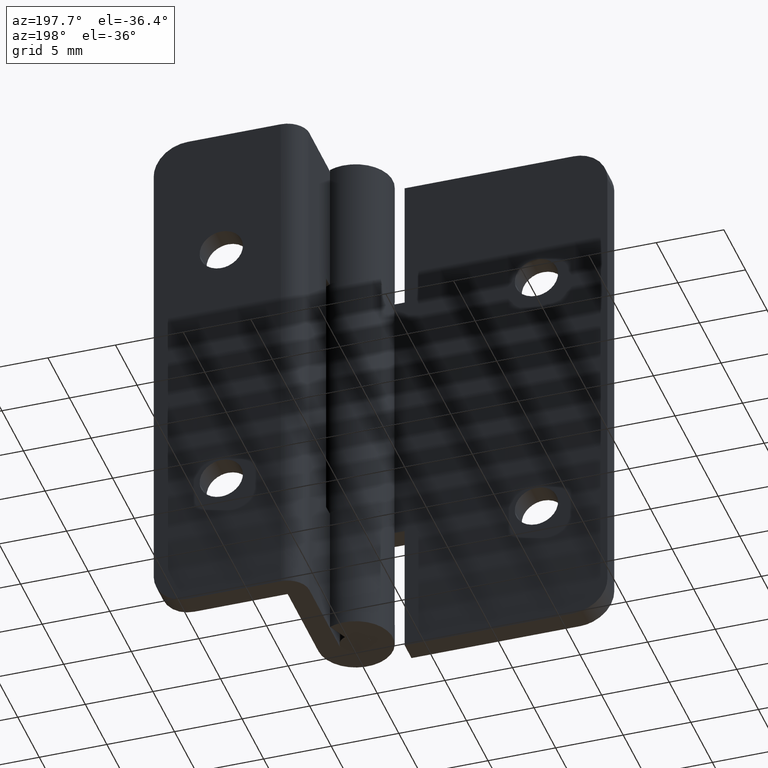
[diagram: clean part render]
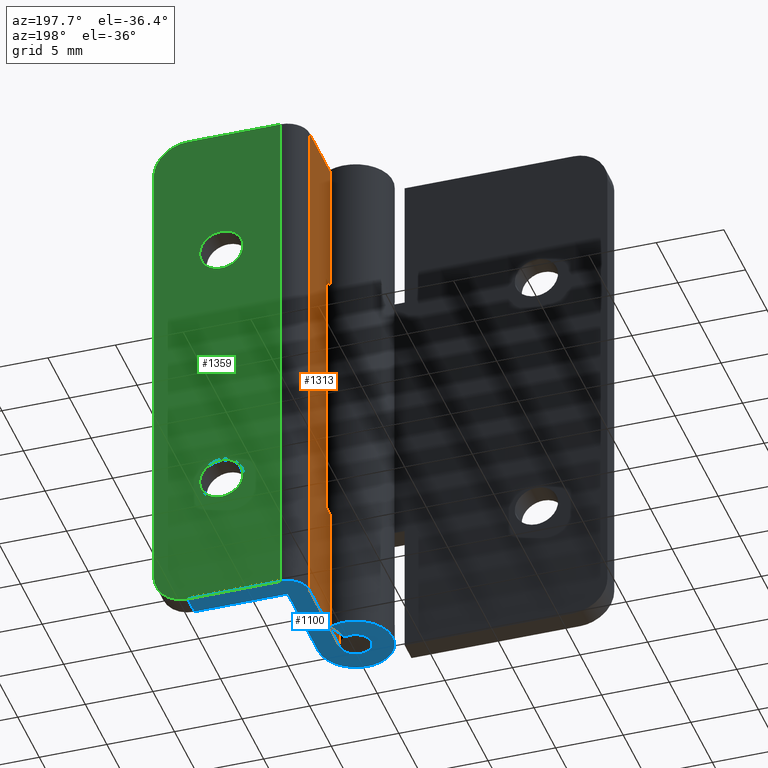
[diagram: same view with three faces highlighted in distinct colors, each labeled with its STEP entity id]
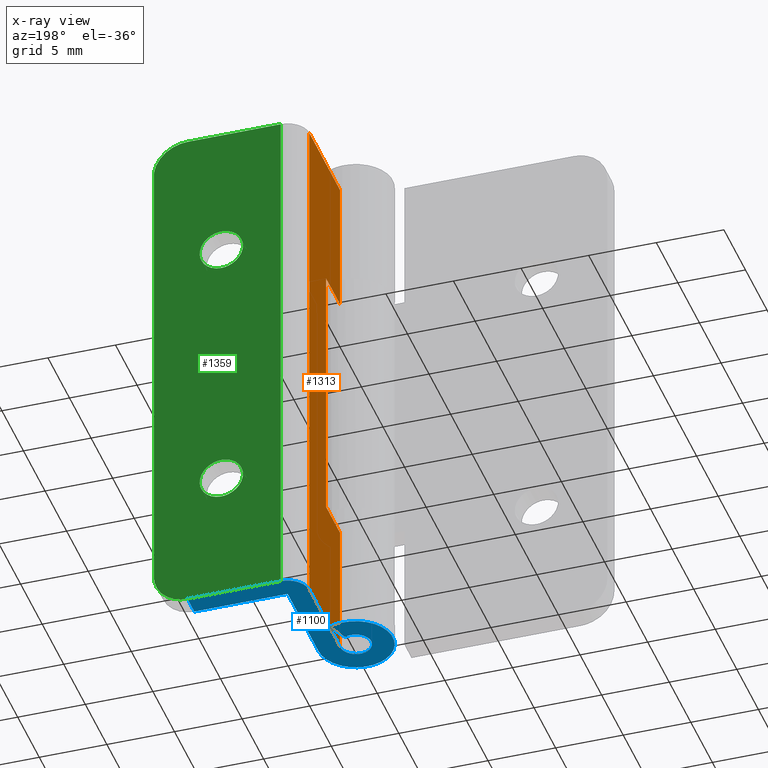
[diagram: x-ray of the same camera — body ghosted, the three highlighted faces saturated]
A machine part, auxiliary view with three faces highlighted in distinct colors.
The next image is the same camera in x-ray (body ghosted, the three faces saturated) — at least one of them is partly hidden behind the body in this view.
Their STEP definitions:

[orange] entity #1313 — the highlighted face is a freeform B-spline surface patch.
#694=CARTESIAN_POINT('',(1.150000999999844,3.249999999999800,10.0));
#695=VERTEX_POINT('',#694);
#701=CARTESIAN_POINT('',(1.150000000000000,0.0,10.0));
#702=VERTEX_POINT('',#701);
#703=CARTESIAN_POINT('',(1.150000000000000,0.0,10.0));
#704=CARTESIAN_POINT('',(1.150000999999844,3.249999999999800,10.0));
#705=QUASI_UNIFORM_CURVE('',1,(#703,#704),.UNSPECIFIED.,.F.,.U.);
#706=EDGE_CURVE('',#702,#695,#705,.T.);
#742=CARTESIAN_POINT('',(1.150000999999844,3.249999999999800,30.0));
#743=VERTEX_POINT('',#742);
#786=CARTESIAN_POINT('',(1.150000000000000,0.0,30.0));
#787=VERTEX_POINT('',#786);
#807=CARTESIAN_POINT('',(1.150000999999844,3.249999999999800,30.0));
#808=CARTESIAN_POINT('',(1.150000000000000,0.0,30.0));
#809=QUASI_UNIFORM_CURVE('',1,(#807,#808),.UNSPECIFIED.,.F.,.U.);
#810=EDGE_CURVE('',#743,#787,#809,.T.);
#827=CARTESIAN_POINT('',(1.150000999999844,3.249999999999800,10.0));
#828=CARTESIAN_POINT('',(1.150000999999844,3.249999999999800,30.0));
#829=QUASI_UNIFORM_CURVE('',1,(#827,#828),.UNSPECIFIED.,.F.,.U.);
#830=EDGE_CURVE('',#695,#743,#829,.T.);
#851=CARTESIAN_POINT('',(1.150000999999890,7.150000000000000,40.0));
#852=VERTEX_POINT('',#851);
#873=CARTESIAN_POINT('',(1.150000999999890,7.150000000000000,0.0));
#874=VERTEX_POINT('',#873);
#888=CARTESIAN_POINT('',(1.150000999999890,7.150000000000000,40.0));
#889=CARTESIAN_POINT('',(1.150000999999890,7.150000000000000,0.0));
#890=QUASI_UNIFORM_CURVE('',1,(#888,#889),.UNSPECIFIED.,.F.,.U.);
#891=EDGE_CURVE('',#852,#874,#890,.T.);
#1023=CARTESIAN_POINT('',(1.150000999999890,0.0,0.0));
#1024=VERTEX_POINT('',#1023);
#1025=CARTESIAN_POINT('',(1.150000999999890,7.150000000000000,0.0));
#1026=CARTESIAN_POINT('',(1.150000999999890,0.0,0.0));
#1027=QUASI_UNIFORM_CURVE('',1,(#1025,#1026),.UNSPECIFIED.,.F.,.U.);
#1028=EDGE_CURVE('',#874,#1024,#1027,.T.);
#1112=CARTESIAN_POINT('',(1.150000999999890,0.0,40.0));
#1113=VERTEX_POINT('',#1112);
#1114=CARTESIAN_POINT('',(1.150000999999890,7.150000000000000,40.0));
#1115=CARTESIAN_POINT('',(1.150000999999890,0.0,40.0));
#1116=QUASI_UNIFORM_CURVE('',1,(#1114,#1115),.UNSPECIFIED.,.F.,.U.);
#1117=EDGE_CURVE('',#852,#1113,#1116,.T.);
#1285=CARTESIAN_POINT('',(1.150000000000000,0.0,10.0));
#1286=CARTESIAN_POINT('',(1.150000999999890,0.0,0.0));
#1287=QUASI_UNIFORM_CURVE('',1,(#1285,#1286),.UNSPECIFIED.,.F.,.U.);
#1288=EDGE_CURVE('',#702,#1024,#1287,.T.);
#1294=CARTESIAN_POINT('',(1.150000999999890,-0.357142486141912,41.997999922472239));
#1295=CARTESIAN_POINT('',(1.150000999999890,-0.357142486141912,-1.998000995355844));
#1296=CARTESIAN_POINT('',(1.150000999999890,7.507142677919856,41.997999922472239));
#1297=CARTESIAN_POINT('',(1.150000999999890,7.507142677919856,-1.998000995355844));
#1298=B_SPLINE_SURFACE_WITH_KNOTS('',1,1,((#1294,#1296),(#1295,#1297)),.UNSPECIFIED.,.F.,.F.,.U.,(2,2),(2,2),(0.0,43.996000917828077),(0.0,7.864285164061768),.UNSPECIFIED.);
#1299=ORIENTED_EDGE('',*,*,#830,.T.);
#1300=ORIENTED_EDGE('',*,*,#810,.T.);
#1301=CARTESIAN_POINT('',(1.150000999999890,0.0,40.0));
#1302=CARTESIAN_POINT('',(1.150000000000000,0.0,30.0));
#1303=QUASI_UNIFORM_CURVE('',1,(#1301,#1302),.UNSPECIFIED.,.F.,.U.);
#1304=EDGE_CURVE('',#1113,#787,#1303,.T.);
#1305=ORIENTED_EDGE('',*,*,#1304,.F.);
#1306=ORIENTED_EDGE('',*,*,#1117,.F.);
#1307=ORIENTED_EDGE('',*,*,#891,.T.);
#1308=ORIENTED_EDGE('',*,*,#1028,.T.);
#1309=ORIENTED_EDGE('',*,*,#1288,.F.);
#1310=ORIENTED_EDGE('',*,*,#706,.T.);
#1311=EDGE_LOOP('',(#1299,#1300,#1305,#1306,#1307,#1308,#1309,#1310));
#1312=FACE_OUTER_BOUND('',#1311,.T.);
#1313=ADVANCED_FACE('',(#1312),#1298,.F.);

[blue] entity #1100 — the highlighted face is a freeform B-spline surface patch.
#866=CARTESIAN_POINT('',(2.750000999999890,8.750000000000000,0.0));
#867=VERTEX_POINT('',#866);
#873=CARTESIAN_POINT('',(1.150000999999890,7.150000000000000,0.0));
#874=VERTEX_POINT('',#873);
#875=CARTESIAN_POINT('',(1.150000999999890,7.150000000000000,0.0));
#876=CARTESIAN_POINT('',(1.150000999999890,8.750000000000000,0.0));
#877=CARTESIAN_POINT('',(2.750000999999890,8.750000000000000,0.0));
#885=(BOUNDED_CURVE()B_SPLINE_CURVE(2,(#875,#876,#877),.UNSPECIFIED.,.F.,.U.)CURVE()GEOMETRIC_REPRESENTATION_ITEM()QUASI_UNIFORM_CURVE()RATIONAL_B_SPLINE_CURVE((1.0,0.707106781186548,1.0))REPRESENTATION_ITEM(''));
#886=EDGE_CURVE('',#874,#867,#885,.T.);
#971=CARTESIAN_POINT('',(9.650000000000000,7.150002000000000,0.0));
#972=VERTEX_POINT('',#971);
#988=CARTESIAN_POINT('',(9.650000000000000,8.750000000000000,0.0));
#989=VERTEX_POINT('',#988);
#990=CARTESIAN_POINT('',(9.650000000000000,8.750000000000000,0.0));
#991=CARTESIAN_POINT('',(9.650000000000000,7.150002000000000,0.0));
#992=QUASI_UNIFORM_CURVE('',1,(#990,#991),.UNSPECIFIED.,.F.,.U.);
#993=EDGE_CURVE('',#989,#972,#992,.T.);
#1018=CARTESIAN_POINT('',(-3.362853146823423,-3.322792927003968,0.0));
#1019=CARTESIAN_POINT('',(10.269068874387459,-3.322792927003968,0.0));
#1020=CARTESIAN_POINT('',(-3.362853146823423,9.324347643445083,0.0));
#1021=CARTESIAN_POINT('',(10.269068874387459,9.324347643445083,0.0));
#1022=B_SPLINE_SURFACE_WITH_KNOTS('',1,1,((#1018,#1020),(#1019,#1021)),.UNSPECIFIED.,.F.,.F.,.U.,(2,2),(2,2),(0.0,13.631922021210880),(0.0,12.647140570449050),.UNSPECIFIED.);
#1023=CARTESIAN_POINT('',(1.150000999999890,0.0,0.0));
#1024=VERTEX_POINT('',#1023);
#1025=CARTESIAN_POINT('',(1.150000999999890,7.150000000000000,0.0));
#1026=CARTESIAN_POINT('',(1.150000999999890,0.0,0.0));
#1027=QUASI_UNIFORM_CURVE('',1,(#1025,#1026),.UNSPECIFIED.,.F.,.U.);
#1028=EDGE_CURVE('',#874,#1024,#1027,.T.);
#1029=ORIENTED_EDGE('',*,*,#1028,.F.);
#1030=ORIENTED_EDGE('',*,*,#886,.T.);
#1031=CARTESIAN_POINT('',(9.650000000000000,8.750000000000000,0.0));
#1032=CARTESIAN_POINT('',(2.750000999999890,8.750000000000000,0.0));
#1033=QUASI_UNIFORM_CURVE('',1,(#1031,#1032),.UNSPECIFIED.,.F.,.U.);
#1034=EDGE_CURVE('',#989,#867,#1033,.T.);
#1035=ORIENTED_EDGE('',*,*,#1034,.F.);
#1036=ORIENTED_EDGE('',*,*,#993,.T.);
#1037=CARTESIAN_POINT('',(2.750000000000000,7.150002000000000,0.0));
#1038=VERTEX_POINT('',#1037);
#1039=CARTESIAN_POINT('',(2.750000000000000,7.150002000000000,0.0));
#1040=CARTESIAN_POINT('',(9.650000000000000,7.150002000000000,0.0));
#1041=QUASI_UNIFORM_CURVE('',1,(#1039,#1040),.UNSPECIFIED.,.F.,.U.);
#1042=EDGE_CURVE('',#1038,#972,#1041,.T.);
#1043=ORIENTED_EDGE('',*,*,#1042,.F.);
#1044=CARTESIAN_POINT('',(2.750000000000000,0.0,0.0));
#1045=VERTEX_POINT('',#1044);
#1046=CARTESIAN_POINT('',(2.750000000000000,0.0,0.0));
#1047=CARTESIAN_POINT('',(2.750000000000000,7.150002000000000,0.0));
#1048=QUASI_UNIFORM_CURVE('',1,(#1046,#1047),.UNSPECIFIED.,.F.,.U.);
#1049=EDGE_CURVE('',#1045,#1038,#1048,.T.);
#1050=ORIENTED_EDGE('',*,*,#1049,.F.);
#1051=CARTESIAN_POINT('',(1.100000999999890,2.520416195789750,0.0));
#1052=VERTEX_POINT('',#1051);
#1053=CARTESIAN_POINT('',(2.750000000000000,0.0,0.0));
#1054=CARTESIAN_POINT('',(2.750000000000000,-2.049583389851374,0.0));
#1055=CARTESIAN_POINT('',(0.785893672075469,-2.635312341296897,0.0));
#1056=CARTESIAN_POINT('',(-1.178212655849061,-3.221041292742419,0.0));
#1057=CARTESIAN_POINT('',(-2.300815371775807,-1.506236576703725,0.0));
#1058=CARTESIAN_POINT('',(-3.423418087702552,0.208568139334970,0.0));
#1059=CARTESIAN_POINT('',(-2.100945483924615,1.774409218184116,0.0));
#1060=CARTESIAN_POINT('',(-0.778472880146677,3.340250297033261,0.0));
#1061=CARTESIAN_POINT('',(1.100000999999890,2.520416195789750,0.0));
#1069=(BOUNDED_CURVE()B_SPLINE_CURVE(2,(#1053,#1054,#1055,#1056,#1057,#1058,#1059,#1060,#1061),.UNSPECIFIED.,.F.,.U.)B_SPLINE_CURVE_WITH_KNOTS((3,2,2,2,3),(0.0,0.250000000000000,0.500000000000000,0.750000000000000,1.0),.UNSPECIFIED.)CURVE()GEOMETRIC_REPRESENTATION_ITEM()RATIONAL_B_SPLINE_CURVE((1.0,0.801804064943036,1.0,0.801804064943036,1.0,0.801804064943036,1.0,0.801804064943036,1.0))REPRESENTATION_ITEM(''));
#1070=EDGE_CURVE('',#1045,#1052,#1069,.T.);
#1071=ORIENTED_EDGE('',*,*,#1070,.T.);
#1072=CARTESIAN_POINT('',(0.460000418181771,1.053992227330256,0.0));
#1073=VERTEX_POINT('',#1072);
#1074=CARTESIAN_POINT('',(0.460000418181771,1.053992227330256,0.0));
#1075=CARTESIAN_POINT('',(1.100000999999890,2.520416195789750,0.0));
#1076=QUASI_UNIFORM_CURVE('',1,(#1074,#1075),.UNSPECIFIED.,.F.,.U.);
#1077=EDGE_CURVE('',#1073,#1052,#1076,.T.);
#1078=ORIENTED_EDGE('',*,*,#1077,.F.);
#1079=CARTESIAN_POINT('',(1.150000999999890,0.0,0.0));
#1080=CARTESIAN_POINT('',(1.150000000000000,-0.857098508483302,0.0));
#1081=CARTESIAN_POINT('',(0.328646444686105,-1.102039706360521,0.0));
#1082=CARTESIAN_POINT('',(-0.492707110627789,-1.346980904237739,0.0));
#1083=CARTESIAN_POINT('',(-0.962159155469883,-0.629880750257921,0.0));
#1084=CARTESIAN_POINT('',(-1.431611200311977,0.087219403721896,0.0));
#1085=CARTESIAN_POINT('',(-0.878577202368475,0.742025673058812,0.0));
#1086=CARTESIAN_POINT('',(-0.325543204424974,1.396831942395728,0.0));
#1087=CARTESIAN_POINT('',(0.460000418181771,1.053992227330257,0.0));
#1095=(BOUNDED_CURVE()B_SPLINE_CURVE(2,(#1079,#1080,#1081,#1082,#1083,#1084,#1085,#1086,#1087),.UNSPECIFIED.,.F.,.U.)B_SPLINE_CURVE_WITH_KNOTS((3,2,2,2,3),(0.0,0.250000000000000,0.500000000000000,0.750000000000000,1.0),.UNSPECIFIED.)CURVE()GEOMETRIC_REPRESENTATION_ITEM()RATIONAL_B_SPLINE_CURVE((1.0,0.801804064943036,1.0,0.801804064943036,1.0,0.801804064943036,1.0,0.801804064943036,1.0))REPRESENTATION_ITEM(''));
#1096=EDGE_CURVE('',#1024,#1073,#1095,.T.);
#1097=ORIENTED_EDGE('',*,*,#1096,.F.);
#1098=EDGE_LOOP('',(#1029,#1030,#1035,#1036,#1043,#1050,#1071,#1078,#1097));
#1099=FACE_OUTER_BOUND('',#1098,.T.);
#1100=ADVANCED_FACE('',(#1099),#1022,.F.);

[green] entity #1359 — the highlighted face is a freeform B-spline surface patch.
#313=CARTESIAN_POINT('',(7.150000000000000,8.750000000000000,31.600000000000001));
#314=VERTEX_POINT('',#313);
#315=CARTESIAN_POINT('',(5.554932266027802,8.750000000000000,30.125534553174798));
#316=VERTEX_POINT('',#315);
#317=CARTESIAN_POINT('',(7.150000000000000,8.750000000000000,31.600000000000001));
#318=CARTESIAN_POINT('',(5.670975213365924,8.750000000000002,31.599999999999998));
#319=CARTESIAN_POINT('',(5.554932266027802,8.750000000000000,30.125534553174795));
#327=(BOUNDED_CURVE()B_SPLINE_CURVE(2,(#317,#318,#319),.UNSPECIFIED.,.F.,.U.)B_SPLINE_CURVE_WITH_KNOTS((3,3),(0.0,0.236331300630565),.UNSPECIFIED.)CURVE()GEOMETRIC_REPRESENTATION_ITEM()RATIONAL_B_SPLINE_CURVE((1.0,0.723120658607776,0.969723356167221))REPRESENTATION_ITEM(''));
#328=EDGE_CURVE('',#314,#316,#327,.T.);
#330=CARTESIAN_POINT('',(8.745067733972199,8.750000000000000,29.874465446825209));
#331=VERTEX_POINT('',#330);
#332=CARTESIAN_POINT('',(8.745067733972199,8.750000000000000,29.874465446825202));
#333=CARTESIAN_POINT('',(8.750000000000000,8.750000000000000,29.937135828777432));
#334=CARTESIAN_POINT('',(8.750000000000000,8.750000000000000,30.0));
#335=CARTESIAN_POINT('',(8.750000000000000,8.750000000000000,31.599999999999994));
#336=CARTESIAN_POINT('',(7.150000000000000,8.750000000000000,31.600000000000001));
#344=(BOUNDED_CURVE()B_SPLINE_CURVE(2,(#332,#333,#334,#335,#336),.UNSPECIFIED.,.F.,.U.)B_SPLINE_CURVE_WITH_KNOTS((3,2,3),(0.736331300630565,0.750000000000000,1.0),.UNSPECIFIED.)CURVE()GEOMETRIC_REPRESENTATION_ITEM()RATIONAL_B_SPLINE_CURVE((0.969723356167220,0.983986122578771,1.0,0.707106781186548,1.0))REPRESENTATION_ITEM(''));
#345=EDGE_CURVE('',#331,#314,#344,.T.);
#412=CARTESIAN_POINT('',(7.150000000000000,8.750000000000000,28.399999999999999));
#413=VERTEX_POINT('',#412);
#414=CARTESIAN_POINT('',(5.554932266027802,8.750000000000000,30.125534553174798));
#415=CARTESIAN_POINT('',(5.549999999999999,8.750000000000000,30.062864171222564));
#416=CARTESIAN_POINT('',(5.550000000000000,8.750000000000000,30.0));
#417=CARTESIAN_POINT('',(5.550000000000000,8.750000000000000,28.399999999999999));
#418=CARTESIAN_POINT('',(7.150000000000000,8.750000000000000,28.399999999999999));
#426=(BOUNDED_CURVE()B_SPLINE_CURVE(2,(#414,#415,#416,#417,#418),.UNSPECIFIED.,.F.,.U.)B_SPLINE_CURVE_WITH_KNOTS((3,2,3),(0.236331300630565,0.250000000000000,0.500000000000000),.UNSPECIFIED.)CURVE()GEOMETRIC_REPRESENTATION_ITEM()RATIONAL_B_SPLINE_CURVE((0.969723356167221,0.983986122578771,1.0,0.707106781186548,1.0))REPRESENTATION_ITEM(''));
#427=EDGE_CURVE('',#316,#413,#426,.T.);
#461=CARTESIAN_POINT('',(7.150000000000000,8.750000000000000,28.399999999999999));
#462=CARTESIAN_POINT('',(8.629024786634082,8.750000000000000,28.399999999999999));
#463=CARTESIAN_POINT('',(8.745067733972199,8.750000000000000,29.874465446825202));
#471=(BOUNDED_CURVE()B_SPLINE_CURVE(2,(#461,#462,#463),.UNSPECIFIED.,.F.,.U.)B_SPLINE_CURVE_WITH_KNOTS((3,3),(0.500000000000000,0.736331300630566),.UNSPECIFIED.)CURVE()GEOMETRIC_REPRESENTATION_ITEM()RATIONAL_B_SPLINE_CURVE((1.0,0.723120658607776,0.969723356167222))REPRESENTATION_ITEM(''));
#472=EDGE_CURVE('',#413,#331,#471,.T.);
#495=CARTESIAN_POINT('',(7.150000000000000,8.750000000000000,11.600000000000000));
#496=VERTEX_POINT('',#495);
#497=CARTESIAN_POINT('',(5.554932266027802,8.750000000000000,10.125534553174800));
#498=VERTEX_POINT('',#497);
#499=CARTESIAN_POINT('',(7.150000000000000,8.750000000000000,11.600000000000000));
#500=CARTESIAN_POINT('',(5.670975213365924,8.750000000000000,11.600000000000001));
#501=CARTESIAN_POINT('',(5.554932266027802,8.750000000000000,10.125534553174797));
#509=(BOUNDED_CURVE()B_SPLINE_CURVE(2,(#499,#500,#501),.UNSPECIFIED.,.F.,.U.)B_SPLINE_CURVE_WITH_KNOTS((3,3),(0.0,0.236331300630565),.UNSPECIFIED.)CURVE()GEOMETRIC_REPRESENTATION_ITEM()RATIONAL_B_SPLINE_CURVE((1.0,0.723120658607776,0.969723356167220))REPRESENTATION_ITEM(''));
#510=EDGE_CURVE('',#496,#498,#509,.T.);
#512=CARTESIAN_POINT('',(8.745067733972199,8.750000000000000,9.874465446825203));
#513=VERTEX_POINT('',#512);
#514=CARTESIAN_POINT('',(8.745067733972199,8.750000000000000,9.874465446825203));
#515=CARTESIAN_POINT('',(8.750000000000000,8.750000000000000,9.937135828777437));
#516=CARTESIAN_POINT('',(8.750000000000000,8.750000000000000,10.0));
#517=CARTESIAN_POINT('',(8.750000000000000,8.750000000000000,11.600000000000001));
#518=CARTESIAN_POINT('',(7.150000000000000,8.750000000000000,11.600000000000000));
#526=(BOUNDED_CURVE()B_SPLINE_CURVE(2,(#514,#515,#516,#517,#518),.UNSPECIFIED.,.F.,.U.)B_SPLINE_CURVE_WITH_KNOTS((3,2,3),(0.736331300630565,0.750000000000000,1.0),.UNSPECIFIED.)CURVE()GEOMETRIC_REPRESENTATION_ITEM()RATIONAL_B_SPLINE_CURVE((0.969723356167220,0.983986122578771,1.0,0.707106781186548,1.0))REPRESENTATION_ITEM(''));
#527=EDGE_CURVE('',#513,#496,#526,.T.);
#594=CARTESIAN_POINT('',(7.150000000000000,8.750000000000000,8.400000000000000));
#595=VERTEX_POINT('',#594);
#596=CARTESIAN_POINT('',(5.554932266027802,8.750000000000000,10.125534553174797));
#597=CARTESIAN_POINT('',(5.550000000000001,8.750000000000000,10.062864171222564));
#598=CARTESIAN_POINT('',(5.550000000000000,8.750000000000000,10.0));
#599=CARTESIAN_POINT('',(5.550000000000000,8.750000000000000,8.400000000000000));
#600=CARTESIAN_POINT('',(7.150000000000000,8.750000000000000,8.400000000000000));
#608=(BOUNDED_CURVE()B_SPLINE_CURVE(2,(#596,#597,#598,#599,#600),.UNSPECIFIED.,.F.,.U.)B_SPLINE_CURVE_WITH_KNOTS((3,2,3),(0.236331300630565,0.250000000000000,0.500000000000000),.UNSPECIFIED.)CURVE()GEOMETRIC_REPRESENTATION_ITEM()RATIONAL_B_SPLINE_CURVE((0.969723356167220,0.983986122578771,1.0,0.707106781186548,1.0))REPRESENTATION_ITEM(''));
#609=EDGE_CURVE('',#498,#595,#608,.T.);
#643=CARTESIAN_POINT('',(7.150000000000000,8.750000000000000,8.400000000000000));
#644=CARTESIAN_POINT('',(8.629024786634082,8.750000000000000,8.400000000000000));
#645=CARTESIAN_POINT('',(8.745067733972199,8.750000000000000,9.874465446825203));
#653=(BOUNDED_CURVE()B_SPLINE_CURVE(2,(#643,#644,#645),.UNSPECIFIED.,.F.,.U.)B_SPLINE_CURVE_WITH_KNOTS((3,3),(0.500000000000000,0.736331300630566),.UNSPECIFIED.)CURVE()GEOMETRIC_REPRESENTATION_ITEM()RATIONAL_B_SPLINE_CURVE((1.0,0.723120658607776,0.969723356167222))REPRESENTATION_ITEM(''));
#654=EDGE_CURVE('',#595,#513,#653,.T.);
#849=CARTESIAN_POINT('',(2.750000999999890,8.750000000000000,40.0));
#850=VERTEX_POINT('',#849);
#866=CARTESIAN_POINT('',(2.750000999999890,8.750000000000000,0.0));
#867=VERTEX_POINT('',#866);
#868=CARTESIAN_POINT('',(2.750000999999890,8.750000000000000,0.0));
#869=CARTESIAN_POINT('',(2.750000999999890,8.750000000000000,40.0));
#870=QUASI_UNIFORM_CURVE('',1,(#868,#869),.UNSPECIFIED.,.F.,.U.);
#871=EDGE_CURVE('',#867,#850,#870,.T.);
#927=CARTESIAN_POINT('',(12.150000000000000,8.750000000000000,37.500000000000000));
#928=VERTEX_POINT('',#927);
#934=CARTESIAN_POINT('',(9.650000000000000,8.750000000000000,40.0));
#935=VERTEX_POINT('',#934);
#936=CARTESIAN_POINT('',(9.650000000000000,8.750000000000000,40.0));
#937=CARTESIAN_POINT('',(12.150000000000002,8.750000000000000,39.999999999999993));
#938=CARTESIAN_POINT('',(12.150000000000000,8.750000000000000,37.500000000000000));
#946=(BOUNDED_CURVE()B_SPLINE_CURVE(2,(#936,#937,#938),.UNSPECIFIED.,.F.,.U.)CURVE()GEOMETRIC_REPRESENTATION_ITEM()QUASI_UNIFORM_CURVE()RATIONAL_B_SPLINE_CURVE((1.0,0.707106781186548,1.0))REPRESENTATION_ITEM(''));
#947=EDGE_CURVE('',#935,#928,#946,.T.);
#988=CARTESIAN_POINT('',(9.650000000000000,8.750000000000000,0.0));
#989=VERTEX_POINT('',#988);
#995=CARTESIAN_POINT('',(12.150000000000000,8.750000000000000,2.499999999999945));
#996=VERTEX_POINT('',#995);
#997=CARTESIAN_POINT('',(12.150000000000000,8.750000000000000,2.499999999999945));
#998=CARTESIAN_POINT('',(12.150000000000002,8.750000000000000,-5.507747E-014));
#999=CARTESIAN_POINT('',(9.650000000000000,8.750000000000000,0.0));
#1007=(BOUNDED_CURVE()B_SPLINE_CURVE(2,(#997,#998,#999),.UNSPECIFIED.,.F.,.U.)CURVE()GEOMETRIC_REPRESENTATION_ITEM()QUASI_UNIFORM_CURVE()RATIONAL_B_SPLINE_CURVE((1.0,0.707106781186548,1.0))REPRESENTATION_ITEM(''));
#1008=EDGE_CURVE('',#996,#989,#1007,.T.);
#1031=CARTESIAN_POINT('',(9.650000000000000,8.750000000000000,0.0));
#1032=CARTESIAN_POINT('',(2.750000999999890,8.750000000000000,0.0));
#1033=QUASI_UNIFORM_CURVE('',1,(#1031,#1032),.UNSPECIFIED.,.F.,.U.);
#1034=EDGE_CURVE('',#989,#867,#1033,.T.);
#1106=CARTESIAN_POINT('',(9.650000000000000,8.750000000000000,40.0));
#1107=CARTESIAN_POINT('',(2.750000999999890,8.750000000000000,40.0));
#1108=QUASI_UNIFORM_CURVE('',1,(#1106,#1107),.UNSPECIFIED.,.F.,.U.);
#1109=EDGE_CURVE('',#935,#850,#1108,.T.);
#1325=CARTESIAN_POINT('',(12.150000000000000,8.750000000000000,37.500000000000000));
#1326=CARTESIAN_POINT('',(12.150000000000000,8.750000000000000,2.499999999999945));
#1327=QUASI_UNIFORM_CURVE('',1,(#1325,#1326),.UNSPECIFIED.,.F.,.U.);
#1328=EDGE_CURVE('',#928,#996,#1327,.T.);
#1334=CARTESIAN_POINT('',(2.280471013511840,8.750000000000000,41.997999922472239));
#1335=CARTESIAN_POINT('',(2.280471013511840,8.750000000000000,-1.998000995355844));
#1336=CARTESIAN_POINT('',(12.619529482232810,8.750000000000000,41.997999922472239));
#1337=CARTESIAN_POINT('',(12.619529482232810,8.750000000000000,-1.998000995355845));
#1338=B_SPLINE_SURFACE_WITH_KNOTS('',1,1,((#1334,#1336),(#1335,#1337)),.UNSPECIFIED.,.F.,.F.,.U.,(2,2),(2,2),(0.0,43.996000917828077),(0.0,10.339058468720969),.UNSPECIFIED.);
#1339=ORIENTED_EDGE('',*,*,#1034,.T.);
#1340=ORIENTED_EDGE('',*,*,#871,.T.);
#1341=ORIENTED_EDGE('',*,*,#1109,.F.);
#1342=ORIENTED_EDGE('',*,*,#947,.T.);
#1343=ORIENTED_EDGE('',*,*,#1328,.T.);
#1344=ORIENTED_EDGE('',*,*,#1008,.T.);
#1345=EDGE_LOOP('',(#1339,#1340,#1341,#1342,#1343,#1344));
#1346=FACE_OUTER_BOUND('',#1345,.T.);
#1347=ORIENTED_EDGE('',*,*,#654,.T.);
#1348=ORIENTED_EDGE('',*,*,#527,.T.);
#1349=ORIENTED_EDGE('',*,*,#510,.T.);
#1350=ORIENTED_EDGE('',*,*,#609,.T.);
#1351=EDGE_LOOP('',(#1347,#1348,#1349,#1350));
#1352=FACE_BOUND('',#1351,.T.);
#1353=ORIENTED_EDGE('',*,*,#472,.T.);
#1354=ORIENTED_EDGE('',*,*,#345,.T.);
#1355=ORIENTED_EDGE('',*,*,#328,.T.);
#1356=ORIENTED_EDGE('',*,*,#427,.T.);
#1357=EDGE_LOOP('',(#1353,#1354,#1355,#1356));
#1358=FACE_BOUND('',#1357,.T.);
#1359=ADVANCED_FACE('',(#1346,#1352,#1358),#1338,.F.);